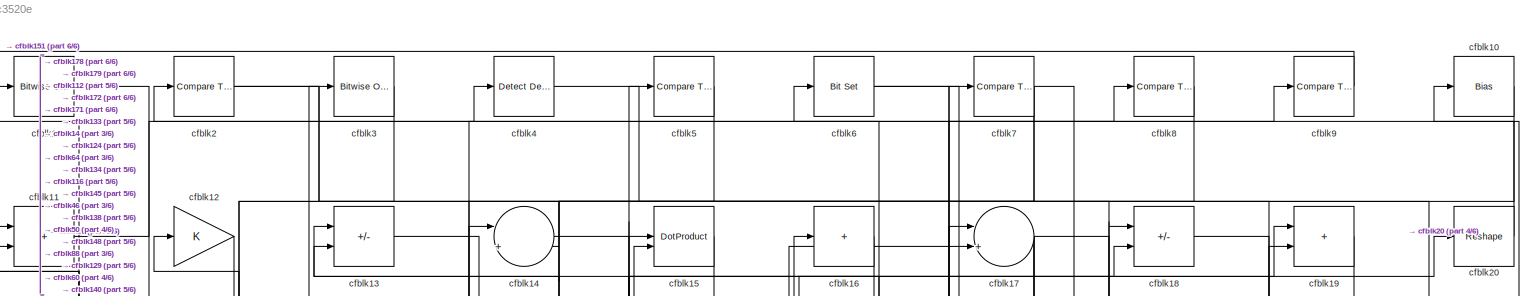
[diagram: root canvas - part 1/6, full width, top band]
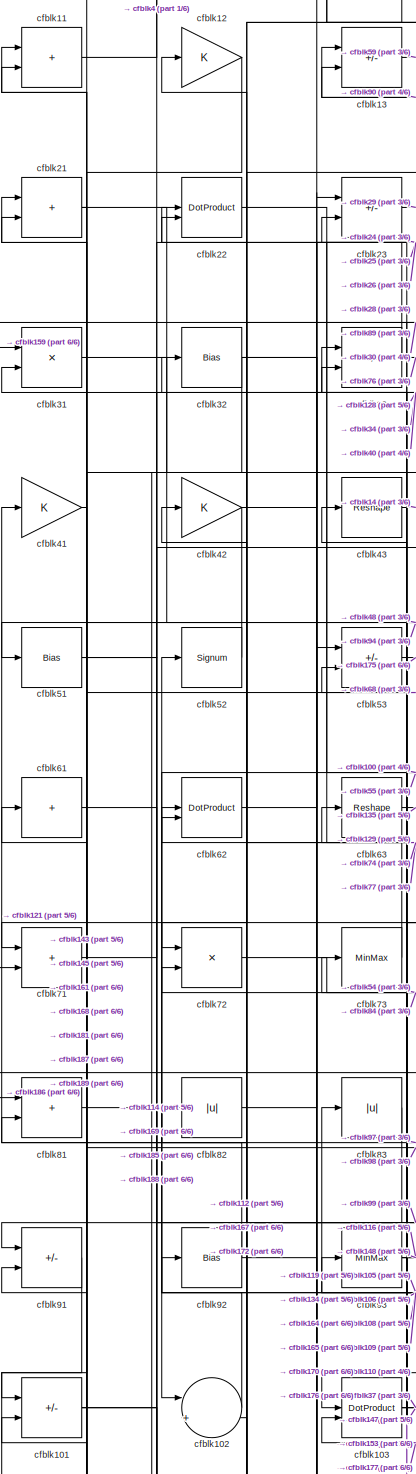
[diagram: root canvas - part 2/6, top left region]
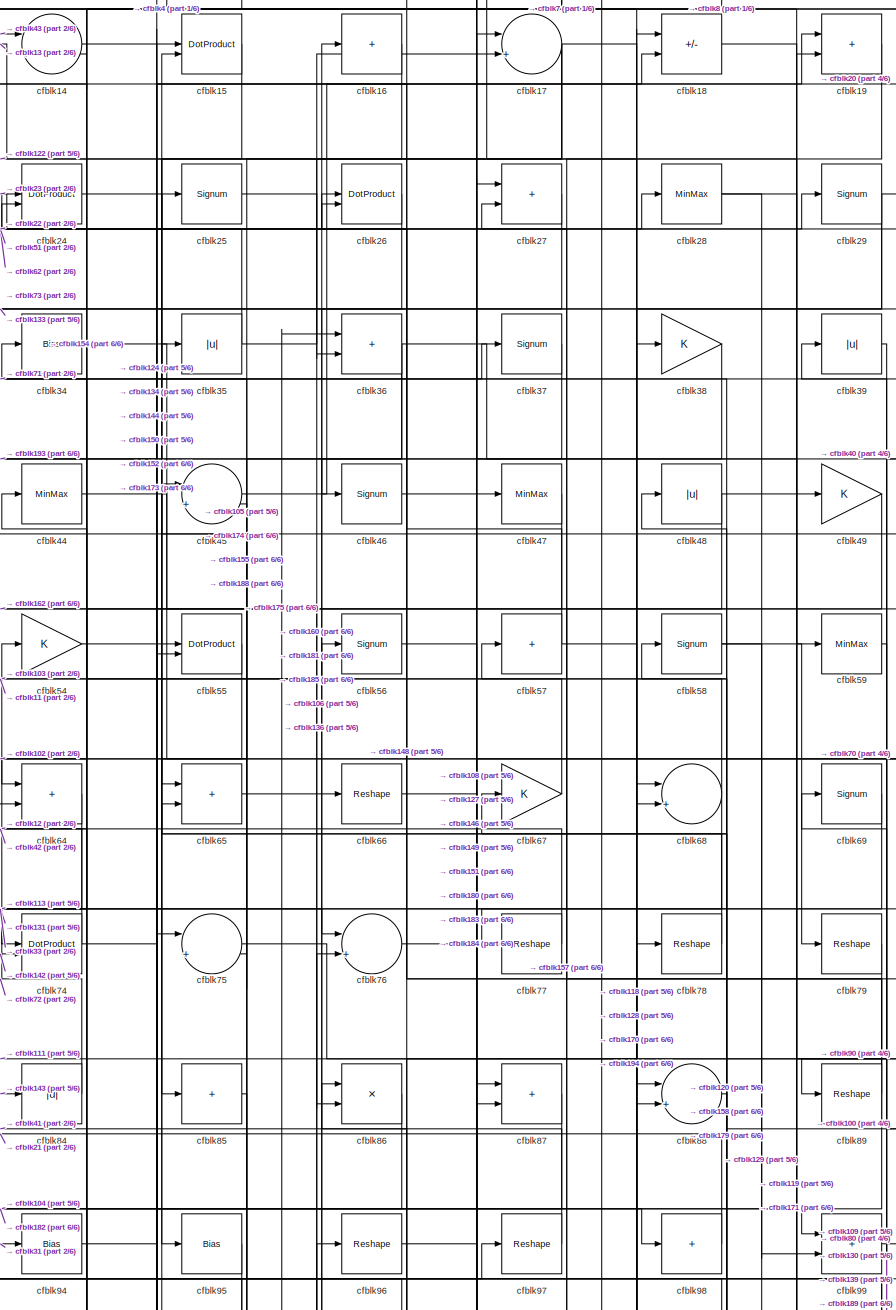
[diagram: root canvas - part 3/6, top center region]
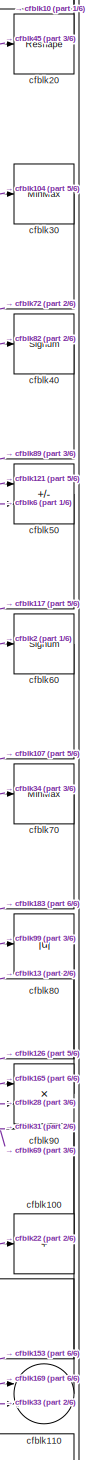
[diagram: root canvas - part 4/6, top right region]
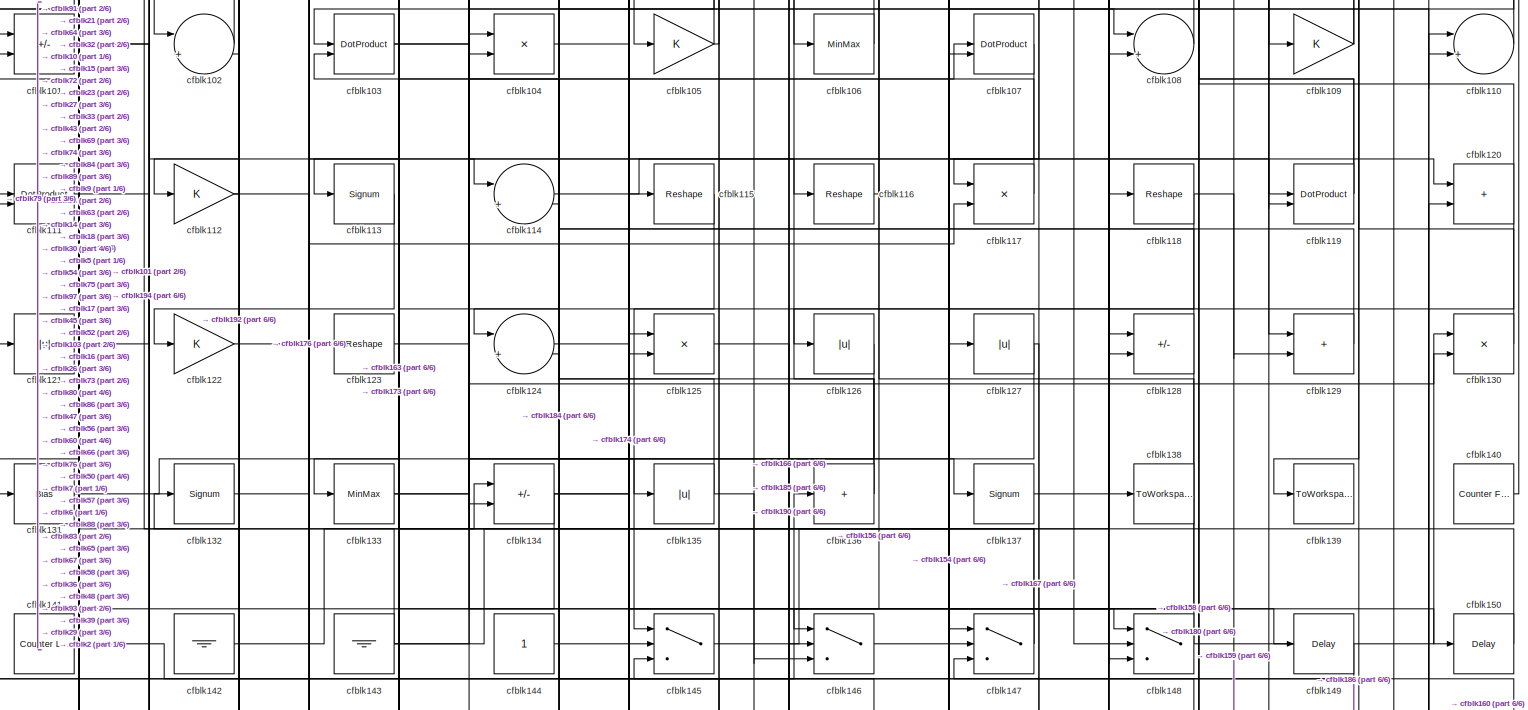
[diagram: root canvas - part 5/6, full width, middle band]
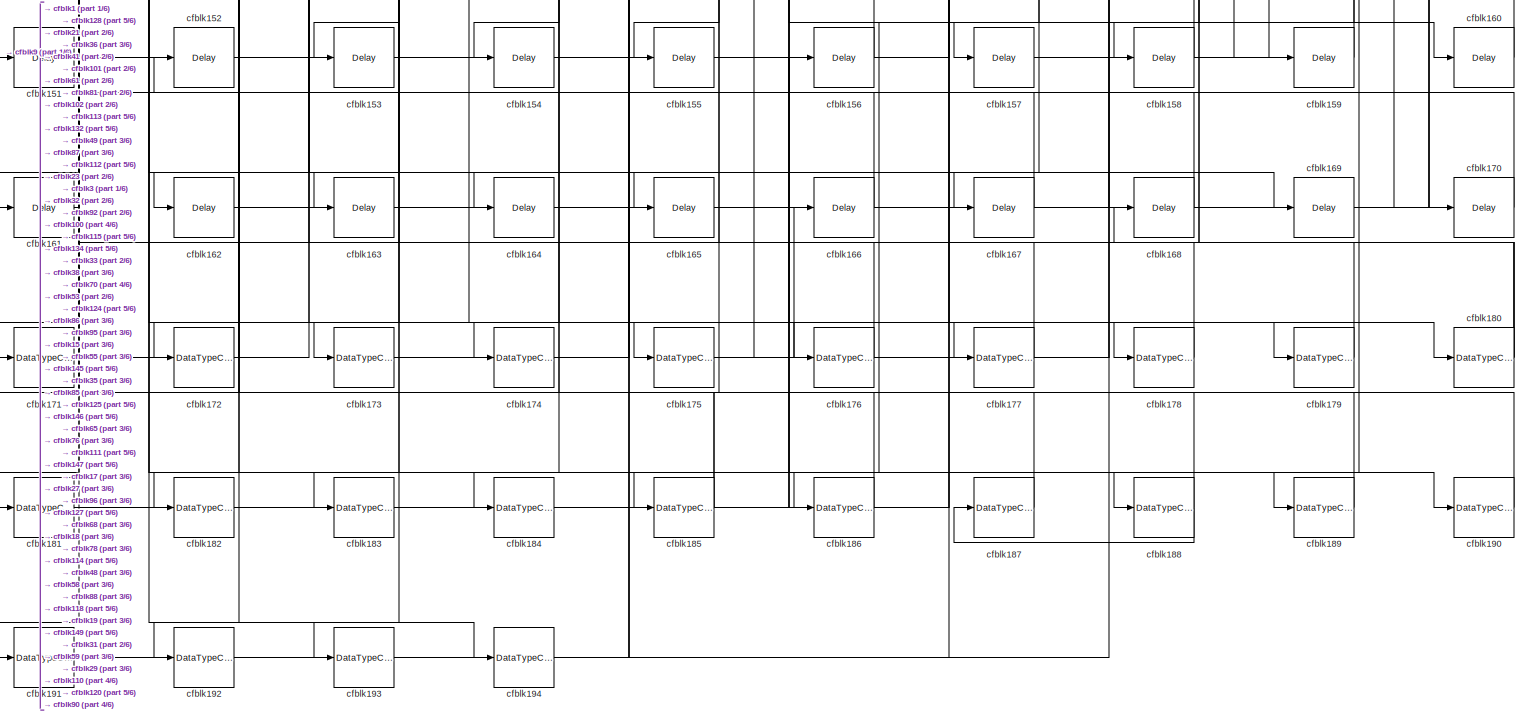
[diagram: root canvas - part 6/6, full width, bottom band]
MODEL slx_0c8bccc3520e
KIND model
CONFIG AbsTol = auto
CONFIG EnableMultiTasking = off
CONFIG FixedStep = auto
CONFIG MaxStep = auto
CONFIG MinStep = auto
CONFIG RelTol = 1e-3
CONFIG SampleTimeConstraint = Unconstrained
CONFIG SolverName = VariableStepAuto
CONFIG StartTime = 0.0
CONFIG StopTime = 10.0
BLOCK [Reference] cfblk1  REF=simulink/Logic and Bit
Operations/Bitwise
Operator
  LibrarySourceBlock = hdlsllib/Logic and Bit\nOperations/Bitwise\nOperator
  SourceBlock = simulink/Logic and Bit\nOperations/Bitwise\nOperator
  SourceType = Bitwise Operator
BLOCK [Bias] cfblk10
  Bias = 0.0
  SaturateOnIntegerOverflow = off
BLOCK [Sum] cfblk100
  IconShape = rectangular
  Inputs = +
BLOCK [Sum] cfblk101
  IconShape = rectangular
  Inputs = +-
BLOCK [Sum] cfblk102
  Inputs = |++
BLOCK [DotProduct] cfblk103
  OutDataTypeStr = Inherit: Inherit via internal rule
BLOCK [Product] cfblk104
  Inputs = */
  RndMeth = Zero
  SaturateOnIntegerOverflow = on
BLOCK [Gain] cfblk105
BLOCK [MinMax] cfblk106
BLOCK [DotProduct] cfblk107
  OutDataTypeStr = Inherit: Inherit via internal rule
BLOCK [Sum] cfblk108
  Inputs = |++
BLOCK [Gain] cfblk109
BLOCK [Sum] cfblk11
  IconShape = rectangular
BLOCK [Sum] cfblk110
  Inputs = |++
BLOCK [DotProduct] cfblk111
  OutDataTypeStr = Inherit: Inherit via internal rule
BLOCK [Gain] cfblk112
BLOCK [Signum] cfblk113
BLOCK [Sum] cfblk114
  Inputs = |++
BLOCK [Reshape] cfblk115
BLOCK [Reshape] cfblk116
BLOCK [Product] cfblk117
  Inputs = */
  RndMeth = Zero
  SaturateOnIntegerOverflow = on
BLOCK [Reshape] cfblk118
BLOCK [DotProduct] cfblk119
  OutDataTypeStr = Inherit: Inherit via internal rule
BLOCK [Gain] cfblk12
BLOCK [Sum] cfblk120
  IconShape = rectangular
BLOCK [Abs] cfblk121
  SaturateOnIntegerOverflow = off
BLOCK [Gain] cfblk122
BLOCK [Reshape] cfblk123
BLOCK [Sum] cfblk124
  Inputs = |++
BLOCK [Product] cfblk125
  Inputs = */
  RndMeth = Zero
  SaturateOnIntegerOverflow = on
BLOCK [Abs] cfblk126
  SaturateOnIntegerOverflow = off
BLOCK [Abs] cfblk127
  SaturateOnIntegerOverflow = off
BLOCK [Sum] cfblk128
  IconShape = rectangular
  Inputs = +-
BLOCK [Sum] cfblk129
  IconShape = rectangular
BLOCK [Sum] cfblk13
  IconShape = rectangular
  Inputs = +-
BLOCK [Product] cfblk130
  Inputs = */
  RndMeth = Zero
  SaturateOnIntegerOverflow = on
BLOCK [Bias] cfblk131
  Bias = 0.0
  SaturateOnIntegerOverflow = off
BLOCK [Signum] cfblk132
BLOCK [MinMax] cfblk133
BLOCK [Sum] cfblk134
  IconShape = rectangular
  Inputs = +-
BLOCK [Abs] cfblk135
  SaturateOnIntegerOverflow = off
BLOCK [Sum] cfblk136
  IconShape = rectangular
  Inputs = +
BLOCK [Signum] cfblk137
BLOCK [ToWorkspace] cfblk138
  MaxDataPoints = inf
  SampleTime = -1
  SaveFormat = Timeseries
  VariableName = simout
BLOCK [ToWorkspace] cfblk139
  MaxDataPoints = inf
  SampleTime = -1
  SaveFormat = Timeseries
  VariableName = simout
BLOCK [Sum] cfblk14
  Inputs = |++
BLOCK [Reference] cfblk140  REF=hdlsllib/Sources/Counter
Free-Running
  SourceBlock = hdlsllib/Sources/Counter\nFree-Running
  SourceType = Counter Free-Running
BLOCK [Reference] cfblk141  REF=hdlsllib/Sources/Counter
Limited
  SourceBlock = hdlsllib/Sources/Counter\nLimited
  SourceType = Counter Limited
BLOCK [Ground] cfblk142
BLOCK [Ground] cfblk143
BLOCK [Constant] cfblk144
  SampleTime = -1
BLOCK [Switch] cfblk145
  InputSameDT = off
  SaturateOnIntegerOverflow = off
BLOCK [Switch] cfblk146
  InputSameDT = off
  SaturateOnIntegerOverflow = off
BLOCK [Switch] cfblk147
  InputSameDT = off
  SaturateOnIntegerOverflow = off
BLOCK [Switch] cfblk148
  InputSameDT = off
  SaturateOnIntegerOverflow = off
BLOCK [Delay] cfblk149
  InputPortMap = u0
  SampleTime = 1
BLOCK [DotProduct] cfblk15
  OutDataTypeStr = Inherit: Inherit via internal rule
BLOCK [Delay] cfblk150
  InputPortMap = u0
  SampleTime = 1
BLOCK [Delay] cfblk151
  InputPortMap = u0
  SampleTime = 1
BLOCK [Delay] cfblk152
  InputPortMap = u0
  SampleTime = 1
BLOCK [Delay] cfblk153
  InputPortMap = u0
  SampleTime = 1
BLOCK [Delay] cfblk154
  InputPortMap = u0
  SampleTime = 1
BLOCK [Delay] cfblk155
  InputPortMap = u0
  SampleTime = 1
BLOCK [Delay] cfblk156
  InputPortMap = u0
  SampleTime = 1
BLOCK [Delay] cfblk157
  InputPortMap = u0
  SampleTime = 1
BLOCK [Delay] cfblk158
  InputPortMap = u0
  SampleTime = 1
BLOCK [Delay] cfblk159
  InputPortMap = u0
  SampleTime = 1
BLOCK [Sum] cfblk16
  IconShape = rectangular
  Inputs = +
BLOCK [Delay] cfblk160
  InputPortMap = u0
  SampleTime = 1
BLOCK [Delay] cfblk161
  InputPortMap = u0
  SampleTime = 1
BLOCK [Delay] cfblk162
  InputPortMap = u0
  SampleTime = 1
BLOCK [Delay] cfblk163
  InputPortMap = u0
  SampleTime = 1
BLOCK [Delay] cfblk164
  InputPortMap = u0
  SampleTime = 1
BLOCK [Delay] cfblk165
  InputPortMap = u0
  SampleTime = 1
BLOCK [Delay] cfblk166
  InputPortMap = u0
  SampleTime = 1
BLOCK [Delay] cfblk167
  InputPortMap = u0
  SampleTime = 1
BLOCK [Delay] cfblk168
  InputPortMap = u0
  SampleTime = 1
BLOCK [Delay] cfblk169
  InputPortMap = u0
  SampleTime = 1
BLOCK [Sum] cfblk17
  Inputs = |++
BLOCK [Delay] cfblk170
  InputPortMap = u0
  SampleTime = 1
BLOCK [DataTypeConversion] cfblk171
  OutDataTypeStr = boolean
  RndMeth = Floor
  SaturateOnIntegerOverflow = off
BLOCK [DataTypeConversion] cfblk172
  OutDataTypeStr = uint8
  RndMeth = Floor
  SaturateOnIntegerOverflow = off
BLOCK [DataTypeConversion] cfblk173
  OutDataTypeStr = uint8
  RndMeth = Floor
  SaturateOnIntegerOverflow = off
BLOCK [DataTypeConversion] cfblk174
  OutDataTypeStr = uint8
  RndMeth = Floor
  SaturateOnIntegerOverflow = off
BLOCK [DataTypeConversion] cfblk175
  RndMeth = Floor
  SaturateOnIntegerOverflow = off
BLOCK [DataTypeConversion] cfblk176
  OutDataTypeStr = uint8
  RndMeth = Floor
  SaturateOnIntegerOverflow = off
BLOCK [DataTypeConversion] cfblk177
  OutDataTypeStr = uint8
  RndMeth = Floor
  SaturateOnIntegerOverflow = off
BLOCK [DataTypeConversion] cfblk178
  OutDataTypeStr = boolean
  RndMeth = Floor
  SaturateOnIntegerOverflow = off
BLOCK [DataTypeConversion] cfblk179
  OutDataTypeStr = uint8
  RndMeth = Floor
  SaturateOnIntegerOverflow = off
BLOCK [Sum] cfblk18
  IconShape = rectangular
  Inputs = +-
BLOCK [DataTypeConversion] cfblk180
  RndMeth = Floor
  SaturateOnIntegerOverflow = off
BLOCK [DataTypeConversion] cfblk181
  OutDataTypeStr = uint8
  RndMeth = Floor
  SaturateOnIntegerOverflow = off
BLOCK [DataTypeConversion] cfblk182
  OutDataTypeStr = uint8
  RndMeth = Floor
  SaturateOnIntegerOverflow = off
BLOCK [DataTypeConversion] cfblk183
  OutDataTypeStr = uint8
  RndMeth = Floor
  SaturateOnIntegerOverflow = off
BLOCK [DataTypeConversion] cfblk184
  OutDataTypeStr = uint8
  RndMeth = Floor
  SaturateOnIntegerOverflow = off
BLOCK [DataTypeConversion] cfblk185
  RndMeth = Floor
  SaturateOnIntegerOverflow = off
BLOCK [DataTypeConversion] cfblk186
  OutDataTypeStr = uint8
  RndMeth = Floor
  SaturateOnIntegerOverflow = off
BLOCK [DataTypeConversion] cfblk187
  OutDataTypeStr = uint8
  RndMeth = Floor
  SaturateOnIntegerOverflow = off
BLOCK [DataTypeConversion] cfblk188
  RndMeth = Floor
  SaturateOnIntegerOverflow = off
BLOCK [DataTypeConversion] cfblk189
  OutDataTypeStr = uint8
  RndMeth = Floor
  SaturateOnIntegerOverflow = off
BLOCK [Sum] cfblk19
  IconShape = rectangular
BLOCK [DataTypeConversion] cfblk190
  OutDataTypeStr = uint8
  RndMeth = Floor
  SaturateOnIntegerOverflow = off
BLOCK [DataTypeConversion] cfblk191
  OutDataTypeStr = uint8
  RndMeth = Floor
  SaturateOnIntegerOverflow = off
BLOCK [DataTypeConversion] cfblk192
  OutDataTypeStr = uint8
  RndMeth = Floor
  SaturateOnIntegerOverflow = off
BLOCK [DataTypeConversion] cfblk193
  RndMeth = Floor
  SaturateOnIntegerOverflow = off
BLOCK [DataTypeConversion] cfblk194
  OutDataTypeStr = uint8
  RndMeth = Floor
  SaturateOnIntegerOverflow = off
BLOCK [Reference] cfblk2  REF=hdlsllib/Logic and Bit
Operations/Compare
To Constant
  SourceBlock = hdlsllib/Logic and Bit\nOperations/Compare\nTo Constant
  SourceType = Compare To Constant
BLOCK [Reshape] cfblk20
BLOCK [Sum] cfblk21
  IconShape = rectangular
BLOCK [DotProduct] cfblk22
  OutDataTypeStr = Inherit: Inherit via internal rule
BLOCK [Sum] cfblk23
  IconShape = rectangular
  Inputs = +-
BLOCK [DotProduct] cfblk24
  OutDataTypeStr = Inherit: Inherit via internal rule
BLOCK [Signum] cfblk25
BLOCK [DotProduct] cfblk26
  OutDataTypeStr = Inherit: Inherit via internal rule
BLOCK [Sum] cfblk27
  IconShape = rectangular
BLOCK [MinMax] cfblk28
BLOCK [Signum] cfblk29
BLOCK [Reference] cfblk3  REF=simulink/Logic and Bit
Operations/Bitwise
Operator
  LibrarySourceBlock = hdlsllib/Logic and Bit\nOperations/Bitwise\nOperator
  SourceBlock = simulink/Logic and Bit\nOperations/Bitwise\nOperator
  SourceType = Bitwise Operator
BLOCK [MinMax] cfblk30
BLOCK [Product] cfblk31
  Inputs = */
  RndMeth = Zero
  SaturateOnIntegerOverflow = on
BLOCK [Bias] cfblk32
  Bias = 0.0
  SaturateOnIntegerOverflow = off
BLOCK [Sum] cfblk33
  IconShape = rectangular
  Inputs = +-
BLOCK [Bias] cfblk34
  Bias = 0.0
  SaturateOnIntegerOverflow = off
BLOCK [Abs] cfblk35
  SaturateOnIntegerOverflow = off
BLOCK [Sum] cfblk36
  IconShape = rectangular
BLOCK [Signum] cfblk37
BLOCK [Gain] cfblk38
BLOCK [Abs] cfblk39
  SaturateOnIntegerOverflow = off
BLOCK [Reference] cfblk4  REF=simulink/Logic and Bit
Operations/Detect
Decrease
  LibrarySourceBlock = hdlsllib/Logic and Bit\nOperations/Detect\nDecrease
  SourceBlock = simulink/Logic and Bit\nOperations/Detect\nDecrease
  SourceType = Detect Decrease
BLOCK [Signum] cfblk40
BLOCK [Gain] cfblk41
BLOCK [Gain] cfblk42
BLOCK [Reshape] cfblk43
BLOCK [MinMax] cfblk44
BLOCK [Sum] cfblk45
  Inputs = |++
BLOCK [Signum] cfblk46
BLOCK [MinMax] cfblk47
BLOCK [Abs] cfblk48
  SaturateOnIntegerOverflow = off
BLOCK [Gain] cfblk49
BLOCK [Reference] cfblk5  REF=hdlsllib/Logic and Bit
Operations/Compare
To Zero
  SourceBlock = hdlsllib/Logic and Bit\nOperations/Compare\nTo Zero
  SourceType = Compare To Zero
BLOCK [Sum] cfblk50
  IconShape = rectangular
  Inputs = +-
BLOCK [Bias] cfblk51
  Bias = 0.0
  SaturateOnIntegerOverflow = off
BLOCK [Signum] cfblk52
BLOCK [Sum] cfblk53
  IconShape = rectangular
  Inputs = +-
BLOCK [Gain] cfblk54
BLOCK [DotProduct] cfblk55
  OutDataTypeStr = Inherit: Inherit via internal rule
BLOCK [Signum] cfblk56
BLOCK [Sum] cfblk57
  IconShape = rectangular
  Inputs = +
BLOCK [Signum] cfblk58
BLOCK [MinMax] cfblk59
BLOCK [Reference] cfblk6  REF=simulink/Logic and Bit
Operations/Bit Set
  LibrarySourceBlock = hdlsllib/Logic and Bit\nOperations/Bit Set
  SourceBlock = simulink/Logic and Bit\nOperations/Bit Set
  SourceType = Bit Set
BLOCK [Signum] cfblk60
BLOCK [Sum] cfblk61
  IconShape = rectangular
  Inputs = +
BLOCK [DotProduct] cfblk62
  OutDataTypeStr = Inherit: Inherit via internal rule
BLOCK [Reshape] cfblk63
BLOCK [Sum] cfblk64
  IconShape = rectangular
BLOCK [Sum] cfblk65
  IconShape = rectangular
BLOCK [Reshape] cfblk66
BLOCK [Gain] cfblk67
BLOCK [Sum] cfblk68
  Inputs = |++
BLOCK [Signum] cfblk69
BLOCK [Reference] cfblk7  REF=hdlsllib/Logic and Bit
Operations/Compare
To Zero
  SourceBlock = hdlsllib/Logic and Bit\nOperations/Compare\nTo Zero
  SourceType = Compare To Zero
BLOCK [MinMax] cfblk70
BLOCK [Sum] cfblk71
  IconShape = rectangular
BLOCK [Product] cfblk72
  Inputs = */
  RndMeth = Zero
  SaturateOnIntegerOverflow = on
BLOCK [MinMax] cfblk73
BLOCK [DotProduct] cfblk74
  OutDataTypeStr = Inherit: Inherit via internal rule
BLOCK [Sum] cfblk75
  Inputs = |++
BLOCK [Sum] cfblk76
  Inputs = |++
BLOCK [Reshape] cfblk77
BLOCK [Reshape] cfblk78
BLOCK [Reshape] cfblk79
BLOCK [Reference] cfblk8  REF=hdlsllib/Logic and Bit
Operations/Compare
To Constant
  SourceBlock = hdlsllib/Logic and Bit\nOperations/Compare\nTo Constant
  SourceType = Compare To Constant
BLOCK [Abs] cfblk80
  SaturateOnIntegerOverflow = off
BLOCK [Sum] cfblk81
  IconShape = rectangular
BLOCK [Abs] cfblk82
  SaturateOnIntegerOverflow = off
BLOCK [Abs] cfblk83
  SaturateOnIntegerOverflow = off
BLOCK [Abs] cfblk84
  SaturateOnIntegerOverflow = off
BLOCK [Sum] cfblk85
  IconShape = rectangular
  Inputs = +
BLOCK [Product] cfblk86
  Inputs = */
  RndMeth = Zero
  SaturateOnIntegerOverflow = on
BLOCK [Sum] cfblk87
  IconShape = rectangular
BLOCK [Sum] cfblk88
  Inputs = |++
BLOCK [Reshape] cfblk89
BLOCK [Reference] cfblk9  REF=hdlsllib/Logic and Bit
Operations/Compare
To Constant
  SourceBlock = hdlsllib/Logic and Bit\nOperations/Compare\nTo Constant
  SourceType = Compare To Constant
BLOCK [Product] cfblk90
  Inputs = */
  RndMeth = Zero
  SaturateOnIntegerOverflow = on
BLOCK [Sum] cfblk91
  IconShape = rectangular
  Inputs = +-
BLOCK [Bias] cfblk92
  Bias = 0.0
  SaturateOnIntegerOverflow = off
BLOCK [MinMax] cfblk93
BLOCK [Bias] cfblk94
  Bias = 0.0
  SaturateOnIntegerOverflow = off
BLOCK [Bias] cfblk95
  Bias = 0.0
  SaturateOnIntegerOverflow = off
BLOCK [Reshape] cfblk96
BLOCK [Reshape] cfblk97
BLOCK [Sum] cfblk98
  IconShape = rectangular
  Inputs = +
BLOCK [Sum] cfblk99
  IconShape = rectangular
NET cfblk100:1 -> cfblk153:1, cfblk31:2, cfblk69:1
NET cfblk101:1 -> cfblk114:1, cfblk169:1
LINE cfblk102:1 -> cfblk62:1
NET cfblk103:1 -> cfblk37:1, cfblk56:1
LINE cfblk104:1 -> cfblk30:1
NET cfblk105:1 -> cfblk45:1, cfblk52:1
LINE cfblk106:1 -> cfblk73:1
LINE cfblk107:1 -> cfblk147:2
LINE cfblk108:1 -> cfblk83:1
NET cfblk109:1 -> cfblk45:2, cfblk93:1
LINE cfblk10:1 -> cfblk112:1
LINE cfblk110:1 -> cfblk82:1
LINE cfblk111:1 -> cfblk194:1
NET cfblk112:1 -> cfblk176:1, cfblk72:2
LINE cfblk113:1 -> cfblk192:1
LINE cfblk114:1 -> cfblk120:1
LINE cfblk115:1 -> cfblk173:1
LINE cfblk116:1 -> cfblk6:1
LINE cfblk117:1 -> cfblk43:1
NET cfblk118:1 -> cfblk145:1, cfblk159:1
NET cfblk119:1 -> cfblk57:1, cfblk65:2
LINE cfblk11:1 -> cfblk4:1
NET cfblk120:1 -> cfblk146:1, cfblk67:1
LINE cfblk121:1 -> cfblk50:1
LINE cfblk122:1 -> cfblk117:2
LINE cfblk123:1 -> cfblk107:1
LINE cfblk124:1 -> cfblk97:1
LINE cfblk125:1 -> cfblk190:1
LINE cfblk126:1 -> cfblk134:2
NET cfblk127:1 -> cfblk167:1, cfblk184:1
NET cfblk128:1 -> cfblk191:1, cfblk32:1
LINE cfblk129:1 -> cfblk63:1
LINE cfblk12:1 -> cfblk101:1
LINE cfblk130:1 -> cfblk39:1
LINE cfblk131:1 -> cfblk137:1
LINE cfblk132:1 -> cfblk123:1
NET cfblk133:1 -> cfblk130:1, cfblk9:1
NET cfblk134:1 -> cfblk163:1, cfblk18:2, cfblk5:1
NET cfblk135:1 -> cfblk13:2, cfblk146:3
NET cfblk136:1 -> cfblk103:2, cfblk16:1
LINE cfblk137:1 -> cfblk108:2
LINE cfblk13:1 -> cfblk59:1
LINE cfblk140:1 -> cfblk2:1
LINE cfblk141:1 -> cfblk136:1
LINE cfblk142:1 -> cfblk74:2
NET cfblk143:1 -> cfblk84:1, cfblk88:2, cfblk91:2
LINE cfblk144:1 -> cfblk75:1
LINE cfblk145:1 -> cfblk7:1
LINE cfblk146:1 -> cfblk47:1
NET cfblk147:1 -> cfblk23:2, cfblk33:1
NET cfblk148:1 -> cfblk130:2, cfblk86:1
LINE cfblk149:1 -> cfblk186:1
LINE cfblk14:1 -> cfblk148:1
LINE cfblk150:1 -> cfblk104:1
LINE cfblk151:1 -> cfblk27:1
LINE cfblk152:1 -> cfblk55:1
LINE cfblk153:1 -> cfblk33:2
LINE cfblk154:1 -> cfblk147:1
LINE cfblk155:1 -> cfblk178:1
LINE cfblk156:1 -> cfblk111:1
LINE cfblk157:1 -> cfblk19:2
LINE cfblk158:1 -> cfblk114:2
LINE cfblk159:1 -> cfblk31:1
LINE cfblk15:1 -> cfblk122:1
LINE cfblk160:1 -> cfblk147:3
LINE cfblk161:1 -> cfblk21:2
LINE cfblk162:1 -> cfblk18:1
LINE cfblk163:1 -> cfblk120:2
LINE cfblk164:1 -> cfblk177:1
LINE cfblk165:1 -> cfblk90:1
LINE cfblk166:1 -> cfblk146:2
LINE cfblk167:1 -> cfblk102:2
LINE cfblk168:1 -> cfblk101:2
LINE cfblk169:1 -> cfblk110:1
LINE cfblk16:1 -> cfblk95:1
LINE cfblk170:1 -> cfblk23:1
LINE cfblk171:1 -> cfblk3:1
LINE cfblk172:1 -> cfblk92:1
LINE cfblk173:1 -> cfblk15:1
LINE cfblk174:1 -> cfblk115:1
NET cfblk175:1 -> cfblk166:1, cfblk36:1, cfblk68:1, cfblk78:1
LINE cfblk176:1 -> cfblk53:1
LINE cfblk177:1 -> cfblk53:2
LINE cfblk178:1 -> cfblk1:1
LINE cfblk179:1 -> cfblk58:1
NET cfblk17:1 -> cfblk105:1, cfblk36:2, cfblk65:1, cfblk68:2
NET cfblk180:1 -> cfblk145:3, cfblk168:1, cfblk48:1
LINE cfblk181:1 -> cfblk96:1
LINE cfblk182:1 -> cfblk156:1
LINE cfblk183:1 -> cfblk87:1
LINE cfblk184:1 -> cfblk87:2
NET cfblk185:1 -> cfblk124:2, cfblk132:1, cfblk76:2
LINE cfblk186:1 -> cfblk81:1
LINE cfblk187:1 -> cfblk81:2
NET cfblk188:1 -> cfblk187:1, cfblk35:1
LINE cfblk189:1 -> cfblk61:1
LINE cfblk18:1 -> cfblk49:1
LINE cfblk190:1 -> cfblk152:1
LINE cfblk191:1 -> cfblk125:1
LINE cfblk192:1 -> cfblk125:2
NET cfblk193:1 -> cfblk17:1, cfblk55:2
LINE cfblk194:1 -> cfblk38:1
LINE cfblk19:1 -> cfblk77:1
LINE cfblk1:1 -> cfblk179:1
LINE cfblk20:1 -> cfblk10:1
NET cfblk21:1 -> cfblk145:2, cfblk181:1
LINE cfblk22:1 -> cfblk100:1
LINE cfblk23:1 -> cfblk29:1
LINE cfblk24:1 -> cfblk85:1
LINE cfblk25:1 -> cfblk86:2
LINE cfblk26:1 -> cfblk106:1
LINE cfblk27:1 -> cfblk133:1
NET cfblk28:1 -> cfblk90:2, cfblk99:2
NET cfblk29:1 -> cfblk128:2, cfblk170:1, cfblk71:2
NET cfblk2:1 -> cfblk129:1, cfblk60:1
LINE cfblk30:1 -> cfblk72:1
LINE cfblk31:1 -> cfblk94:1
NET cfblk32:1 -> cfblk119:2, cfblk134:1, cfblk164:1
NET cfblk33:1 -> cfblk110:2, cfblk22:2, cfblk76:1
LINE cfblk34:1 -> cfblk70:1
NET cfblk35:1 -> cfblk17:2, cfblk24:2
NET cfblk36:1 -> cfblk119:1, cfblk171:1, cfblk75:2
LINE cfblk37:1 -> cfblk46:1
LINE cfblk38:1 -> cfblk193:1
LINE cfblk39:1 -> cfblk139:1
LINE cfblk3:1 -> cfblk172:1
LINE cfblk40:1 -> cfblk89:1
LINE cfblk41:1 -> cfblk161:1
NET cfblk42:1 -> cfblk26:1, cfblk71:1
LINE cfblk43:1 -> cfblk14:1
LINE cfblk44:1 -> cfblk66:1
LINE cfblk45:1 -> cfblk20:1
LINE cfblk46:1 -> cfblk8:1
LINE cfblk47:1 -> cfblk74:1
NET cfblk48:1 -> cfblk103:1, cfblk109:1
LINE cfblk49:1 -> cfblk162:1
LINE cfblk4:1 -> cfblk88:1
LINE cfblk50:1 -> cfblk117:1
NET cfblk51:1 -> cfblk25:1, cfblk99:1
LINE cfblk52:1 -> cfblk51:1
LINE cfblk53:1 -> cfblk175:1
LINE cfblk54:1 -> cfblk150:1
LINE cfblk55:1 -> cfblk102:1
LINE cfblk56:1 -> cfblk127:1
NET cfblk57:1 -> cfblk118:1, cfblk26:2
NET cfblk58:1 -> cfblk129:2, cfblk79:1
LINE cfblk59:1 -> cfblk189:1
LINE cfblk5:1 -> cfblk124:1
LINE cfblk60:1 -> cfblk107:2
LINE cfblk61:1 -> cfblk188:1
LINE cfblk62:1 -> cfblk28:1
LINE cfblk63:1 -> cfblk135:1
LINE cfblk64:1 -> cfblk131:1
LINE cfblk65:1 -> cfblk160:1
LINE cfblk66:1 -> cfblk108:1
LINE cfblk67:1 -> cfblk44:1
NET cfblk68:1 -> cfblk11:2, cfblk157:1
LINE cfblk69:1 -> cfblk113:1
NET cfblk6:1 -> cfblk138:1, cfblk50:2
LINE cfblk70:1 -> cfblk183:1
LINE cfblk71:1 -> cfblk34:1
LINE cfblk72:1 -> cfblk54:1
LINE cfblk73:1 -> cfblk24:1
NET cfblk74:1 -> cfblk42:1, cfblk98:1
LINE cfblk75:1 -> cfblk128:1
LINE cfblk76:1 -> cfblk149:1
LINE cfblk77:1 -> cfblk12:1
LINE cfblk78:1 -> cfblk15:2
LINE cfblk79:1 -> cfblk111:2
NET cfblk7:1 -> cfblk148:2, cfblk14:2, cfblk64:2
LINE cfblk80:1 -> cfblk126:1
LINE cfblk81:1 -> cfblk185:1
LINE cfblk82:1 -> cfblk40:1
LINE cfblk83:1 -> cfblk91:1
LINE cfblk84:1 -> cfblk62:2
LINE cfblk85:1 -> cfblk155:1
LINE cfblk86:1 -> cfblk154:1
LINE cfblk87:1 -> cfblk182:1
LINE cfblk88:1 -> cfblk158:1
NET cfblk89:1 -> cfblk104:2, cfblk22:1, cfblk27:2
LINE cfblk8:1 -> cfblk64:1
LINE cfblk90:1 -> cfblk13:1
LINE cfblk91:1 -> cfblk121:1
NET cfblk92:1 -> cfblk11:1, cfblk165:1
NET cfblk93:1 -> cfblk116:1, cfblk148:3
LINE cfblk94:1 -> cfblk19:1
LINE cfblk95:1 -> cfblk174:1
LINE cfblk96:1 -> cfblk180:1
LINE cfblk97:1 -> cfblk41:1
LINE cfblk98:1 -> cfblk21:1
LINE cfblk99:1 -> cfblk80:1
LINE cfblk9:1 -> cfblk151:1
note: NET lines group one-source signal fan-out (src -> all destinations, sorted); 1:1 wires keep LINE
